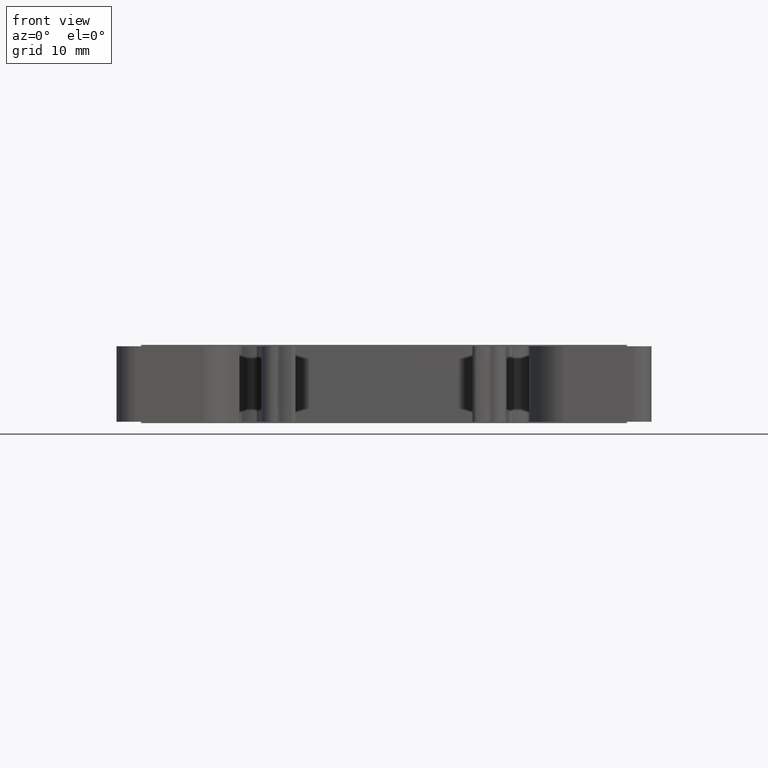
[diagram: clean part render]
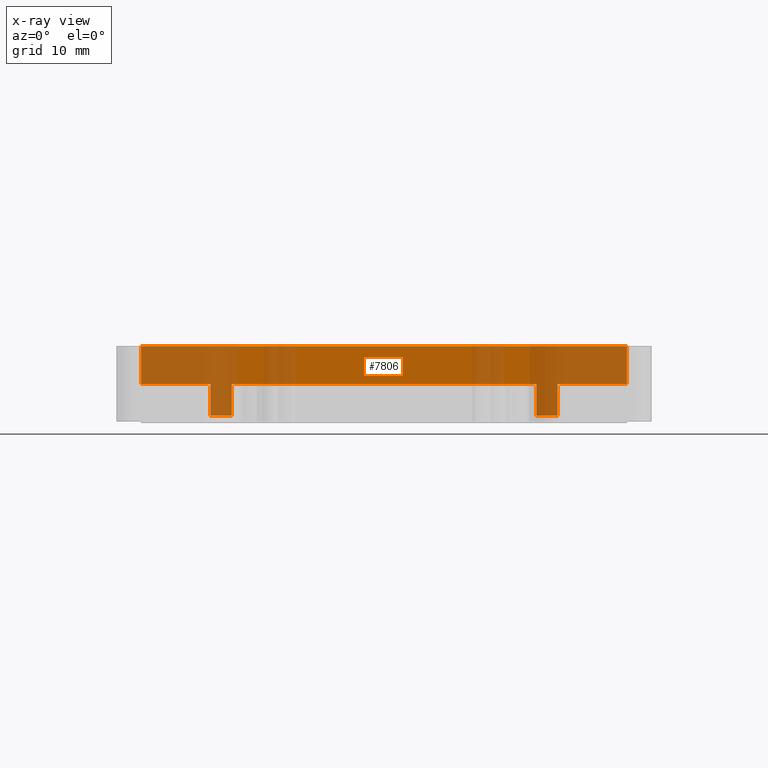
[diagram: x-ray — body ghosted, one internal face saturated and labeled with its STEP entity id]
A machine part, front view, then the same camera in x-ray: the body is ghosted and one INTERNAL B-rep face — a face not visible from any outside direction — is saturated and labeled: STEP entity #7806.
In plain terms, the highlighted planar face has unit normal (-0, 1, 0).
Its self-contained STEP definition (entity closure, byte-faithful):
#242 = EDGE_CURVE ( 'NONE', #14839, #8699, #12946, .T. ) ;
#279 = EDGE_CURVE ( 'NONE', #8713, #8699, #13054, .T. ) ;
#4953 = CARTESIAN_POINT ( 'NONE',  ( 509.2647112226528100, 254.8277155743410800, 4.093515656516496300 ) ) ;
#4968 = LINE ( 'NONE', #4953, #12851 ) ;
#4981 = DIRECTION ( 'NONE',  ( -1.000000000000000000, -2.266960220964500000E-014, 0.0000000000000000000 ) ) ;
#4982 = DIRECTION ( 'NONE',  ( -1.000000000000000000, -2.266960220964500000E-014, 0.0000000000000000000 ) ) ;
#4999 = LINE ( 'NONE', #5017, #12814 ) ;
#5017 = CARTESIAN_POINT ( 'NONE',  ( 509.2647112226528100, 254.8277155743410800, 0.6565345244559919200 ) ) ;
#5096 = DIRECTION ( 'NONE',  ( -0.0000000000000000000, -0.0000000000000000000, -1.000000000000000000 ) ) ;
#5097 = LINE ( 'NONE', #5122, #12832 ) ;
#5122 = CARTESIAN_POINT ( 'NONE',  ( 574.4971053441490800, 254.8277155743425900, 8.178043958385492500 ) ) ;
#5130 = DIRECTION ( 'NONE',  ( 0.0000000000000000000, 0.0000000000000000000, 1.000000000000000000 ) ) ;
#5137 = LINE ( 'NONE', #5166, #12857 ) ;
#5166 = CARTESIAN_POINT ( 'NONE',  ( 572.1869479752944000, 254.8277155743425300, 8.178043958385492500 ) ) ;
#5174 = CARTESIAN_POINT ( 'NONE',  ( 536.7670064783777700, 254.8277155743417100, 8.178043958385492500 ) ) ;
#5177 = LINE ( 'NONE', #5209, #12767 ) ;
#5178 = LINE ( 'NONE', #5206, #12770 ) ;
#5181 = DIRECTION ( 'NONE',  ( -0.0000000000000000000, -0.0000000000000000000, -1.000000000000000000 ) ) ;
#5185 = DIRECTION ( 'NONE',  ( -1.000000000000000000, -2.266960220964500000E-014, 0.0000000000000000000 ) ) ;
#5187 = DIRECTION ( 'NONE',  ( 0.0000000000000000000, 0.0000000000000000000, 1.000000000000000000 ) ) ;
#5188 = DIRECTION ( 'NONE',  ( -1.000000000000000000, -2.266960220964500000E-014, 0.0000000000000000000 ) ) ;
#5195 = LINE ( 'NONE', #5196, #12771 ) ;
#5196 = CARTESIAN_POINT ( 'NONE',  ( 509.2647112226528100, 254.8277155743410800, 4.093515656516491000 ) ) ;
#5206 = CARTESIAN_POINT ( 'NONE',  ( 509.2647112226528100, 254.8277155743410800, 0.6565345244559910300 ) ) ;
#5208 = LINE ( 'NONE', #5174, #12764 ) ;
#5209 = CARTESIAN_POINT ( 'NONE',  ( 539.0771638472319900, 254.8277155743417400, 8.178043958385492500 ) ) ;
#5211 = CARTESIAN_POINT ( 'NONE',  ( 509.2647112226528100, 254.8277155743410800, 4.093515656516491000 ) ) ;
#5212 = LINE ( 'NONE', #5211, #12747 ) ;
#5213 = DIRECTION ( 'NONE',  ( -1.000000000000000000, -2.266960220964500000E-014, 0.0000000000000000000 ) ) ;
#5219 = LINE ( 'NONE', #5225, #12749 ) ;
#5225 = CARTESIAN_POINT ( 'NONE',  ( 529.2320559113774200, 254.8277155743419100, 8.178043958385492500 ) ) ;
#5232 = DIRECTION ( 'NONE',  ( 0.0000000000000000000, 0.0000000000000000000, -1.000000000000000000 ) ) ;
#5443 = PLANE ( 'NONE',  #9989 ) ;
#5449 = FACE_OUTER_BOUND ( 'NONE', #12098, .T. ) ;
#5451 = CARTESIAN_POINT ( 'NONE',  ( 509.2647112226528100, 254.8277155743410800, 8.178043958385492500 ) ) ;
#5460 = DIRECTION ( 'NONE',  ( -2.266960220964500000E-014, 1.000000000000000000, 0.0000000000000000000 ) ) ;
#5470 = DIRECTION ( 'NONE',  ( -1.000000000000000000, -2.266960220964500000E-014, 0.0000000000000000000 ) ) ;
#7099 = CARTESIAN_POINT ( 'NONE',  ( 582.0320559111482900, 254.8277155743427000, 8.193043958385491300 ) ) ;
#7122 = CARTESIAN_POINT ( 'NONE',  ( 529.2320559113771900, 254.8277155743417100, 8.193043958385491300 ) ) ;
#7679 = EDGE_CURVE ( 'NONE', #14839, #14757, #4968, .T. ) ;
#7684 = EDGE_CURVE ( 'NONE', #14806, #14808, #4999, .T. ) ;
#7712 = EDGE_CURVE ( 'NONE', #14757, #14806, #5097, .T. ) ;
#7733 = EDGE_CURVE ( 'NONE', #14808, #14756, #5137, .T. ) ;
#7751 = EDGE_CURVE ( 'NONE', #14753, #14813, #5208, .T. ) ;
#7752 = EDGE_CURVE ( 'NONE', #14782, #14753, #5178, .T. ) ;
#7755 = EDGE_CURVE ( 'NONE', #14840, #14782, #5177, .T. ) ;
#7756 = EDGE_CURVE ( 'NONE', #14813, #14819, #5195, .T. ) ;
#7757 = EDGE_CURVE ( 'NONE', #14756, #14840, #5212, .T. ) ;
#7760 = EDGE_CURVE ( 'NONE', #8713, #14819, #5219, .T. ) ;
#7806 = ADVANCED_FACE ( 'NONE', ( #5449 ), #5443, .T. ) ;
#8699 = VERTEX_POINT ( 'NONE', #7099 ) ;
#8713 = VERTEX_POINT ( 'NONE', #7122 ) ;
#9989 = AXIS2_PLACEMENT_3D ( 'NONE', #5451, #5460, #5470 ) ;
#10267 = VECTOR ( 'NONE', #12964, 1000.000000000000000 ) ;
#10318 = VECTOR ( 'NONE', #13064, 1000.000000000000000 ) ;
#12098 = EDGE_LOOP ( 'NONE', ( #13575, #13511, #13555, #13569, #13548, #13496, #13568, #13499, #13497, #13544, #13524, #13529 ) ) ;
#12574 = CARTESIAN_POINT ( 'NONE',  ( 539.0771638472319900, 254.8277155743417400, 0.6565345244559910300 ) ) ;
#12597 = CARTESIAN_POINT ( 'NONE',  ( 572.1869479752944000, 254.8277155789490100, 4.093515656516491000 ) ) ;
#12614 = CARTESIAN_POINT ( 'NONE',  ( 574.4971053441490800, 254.8277155743425900, 4.093515656516494500 ) ) ;
#12631 = CARTESIAN_POINT ( 'NONE',  ( 536.7670064783777700, 254.8277155764679400, 0.6565345244559910300 ) ) ;
#12638 = CARTESIAN_POINT ( 'NONE',  ( 582.0320559111485200, 254.8277155743428200, 4.093515656516489200 ) ) ;
#12639 = CARTESIAN_POINT ( 'NONE',  ( 529.2320559113800300, 254.8277155752870400, 4.093515656516488300 ) ) ;
#12640 = CARTESIAN_POINT ( 'NONE',  ( 539.0771638472319900, 254.8277155780628800, 4.093515656516491000 ) ) ;
#12642 = CARTESIAN_POINT ( 'NONE',  ( 574.4971053441489600, 254.8277155807208200, 0.6565345244559912500 ) ) ;
#12670 = CARTESIAN_POINT ( 'NONE',  ( 536.7670064783776500, 254.8277155767042100, 4.093515656516491000 ) ) ;
#12683 = CARTESIAN_POINT ( 'NONE',  ( 572.1869479752944000, 254.8277155803664300, 0.6565345244559917000 ) ) ;
#12747 = VECTOR ( 'NONE', #5213, 1000.000000000000000 ) ;
#12749 = VECTOR ( 'NONE', #5232, 1000.000000000000000 ) ;
#12764 = VECTOR ( 'NONE', #5187, 1000.000000000000000 ) ;
#12767 = VECTOR ( 'NONE', #5181, 1000.000000000000000 ) ;
#12770 = VECTOR ( 'NONE', #5185, 1000.000000000000000 ) ;
#12771 = VECTOR ( 'NONE', #5188, 1000.000000000000000 ) ;
#12814 = VECTOR ( 'NONE', #4982, 1000.000000000000000 ) ;
#12832 = VECTOR ( 'NONE', #5096, 1000.000000000000000 ) ;
#12851 = VECTOR ( 'NONE', #4981, 1000.000000000000000 ) ;
#12857 = VECTOR ( 'NONE', #5130, 1000.000000000000000 ) ;
#12946 = LINE ( 'NONE', #12951, #10267 ) ;
#12951 = CARTESIAN_POINT ( 'NONE',  ( 582.0320559111484000, 254.8277155743427000, 8.178043958385492500 ) ) ;
#12964 = DIRECTION ( 'NONE',  ( -0.0000000000000000000, -0.0000000000000000000, 1.000000000000000000 ) ) ;
#13054 = LINE ( 'NONE', #13055, #10318 ) ;
#13055 = CARTESIAN_POINT ( 'NONE',  ( 509.2647112226528100, 254.8277155743410800, 8.193043958385491300 ) ) ;
#13064 = DIRECTION ( 'NONE',  ( 1.000000000000000000, 2.266960220964500000E-014, -0.0000000000000000000 ) ) ;
#13496 = ORIENTED_EDGE ( 'NONE', *, *, #7760, .F. ) ;
#13497 = ORIENTED_EDGE ( 'NONE', *, *, #7679, .T. ) ;
#13499 = ORIENTED_EDGE ( 'NONE', *, *, #242, .F. ) ;
#13511 = ORIENTED_EDGE ( 'NONE', *, *, #7755, .T. ) ;
#13524 = ORIENTED_EDGE ( 'NONE', *, *, #7684, .T. ) ;
#13529 = ORIENTED_EDGE ( 'NONE', *, *, #7733, .T. ) ;
#13544 = ORIENTED_EDGE ( 'NONE', *, *, #7712, .T. ) ;
#13548 = ORIENTED_EDGE ( 'NONE', *, *, #7756, .T. ) ;
#13555 = ORIENTED_EDGE ( 'NONE', *, *, #7752, .T. ) ;
#13568 = ORIENTED_EDGE ( 'NONE', *, *, #279, .T. ) ;
#13569 = ORIENTED_EDGE ( 'NONE', *, *, #7751, .T. ) ;
#13575 = ORIENTED_EDGE ( 'NONE', *, *, #7757, .T. ) ;
#14753 = VERTEX_POINT ( 'NONE', #12631 ) ;
#14756 = VERTEX_POINT ( 'NONE', #12597 ) ;
#14757 = VERTEX_POINT ( 'NONE', #12614 ) ;
#14782 = VERTEX_POINT ( 'NONE', #12574 ) ;
#14806 = VERTEX_POINT ( 'NONE', #12642 ) ;
#14808 = VERTEX_POINT ( 'NONE', #12683 ) ;
#14813 = VERTEX_POINT ( 'NONE', #12670 ) ;
#14819 = VERTEX_POINT ( 'NONE', #12639 ) ;
#14839 = VERTEX_POINT ( 'NONE', #12638 ) ;
#14840 = VERTEX_POINT ( 'NONE', #12640 ) ;